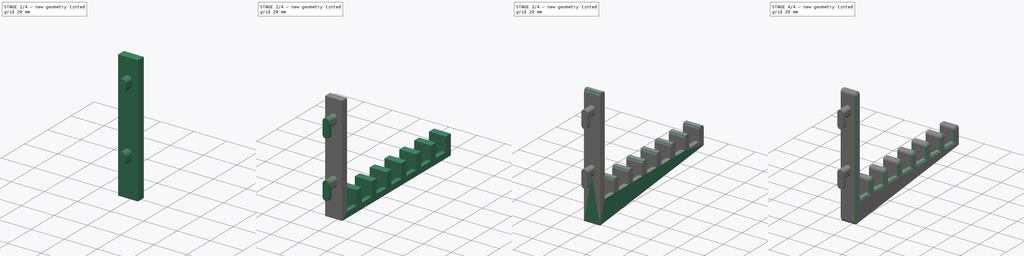
[diagram: build sequence overview — one tinted view per stage of 4, left to right]
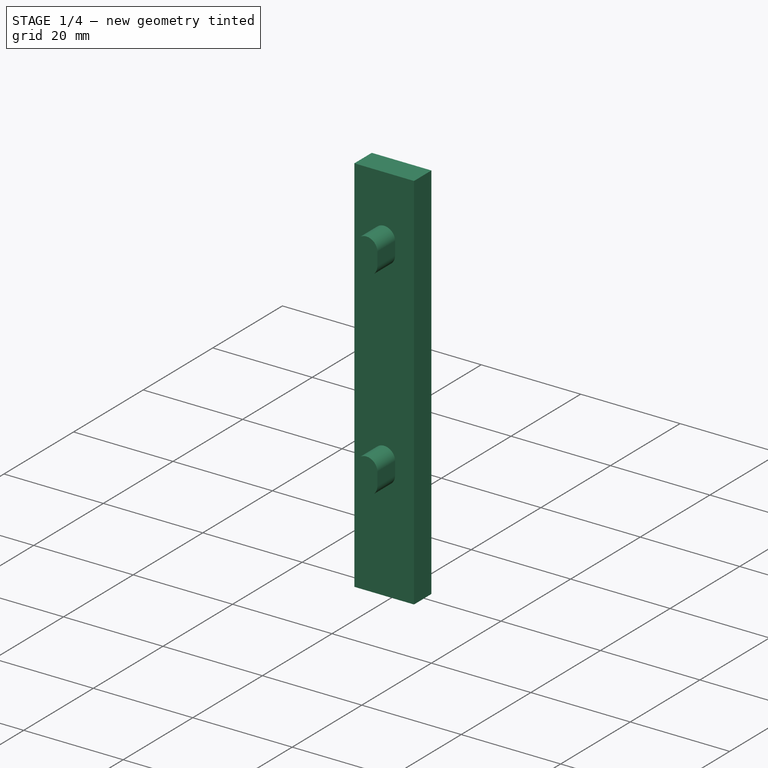
[diagram: stage 1 of 4 — iso view after this stage's code; geometry added in this stage tinted green]
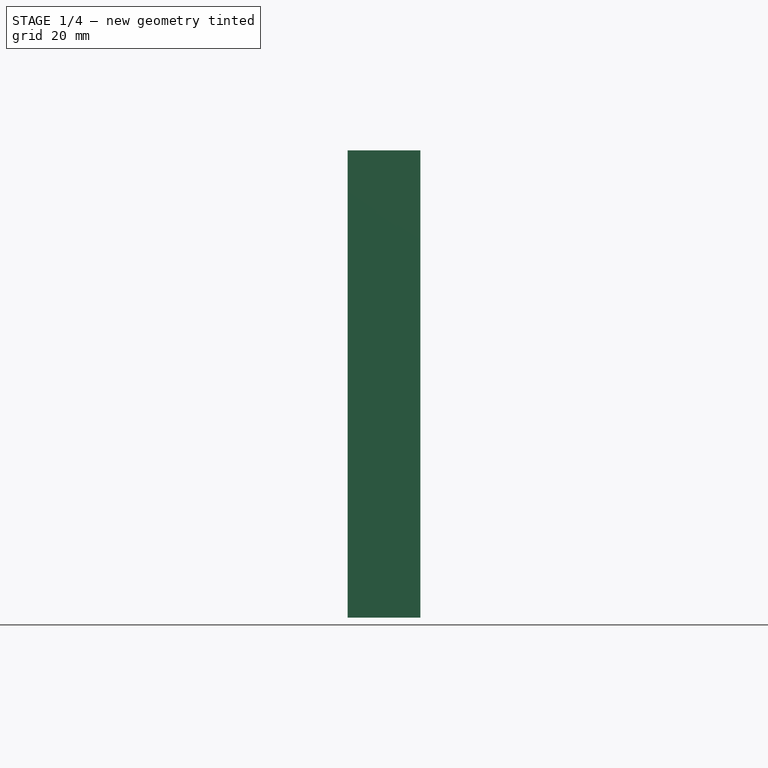
[diagram: stage 1 of 4 — front view after this stage's code; geometry added in this stage tinted green]
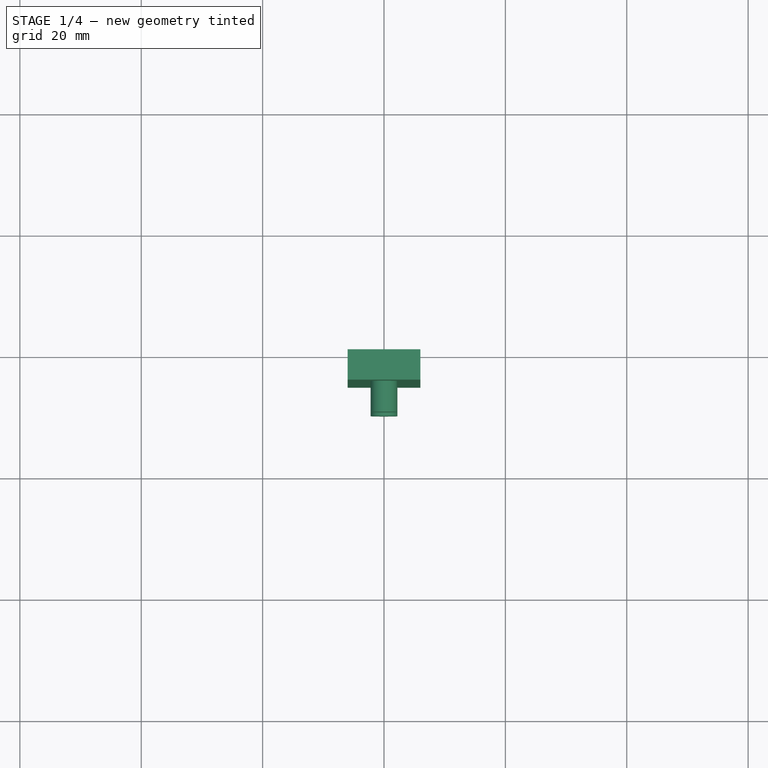
[diagram: stage 1 of 4 — top view after this stage's code; geometry added in this stage tinted green]
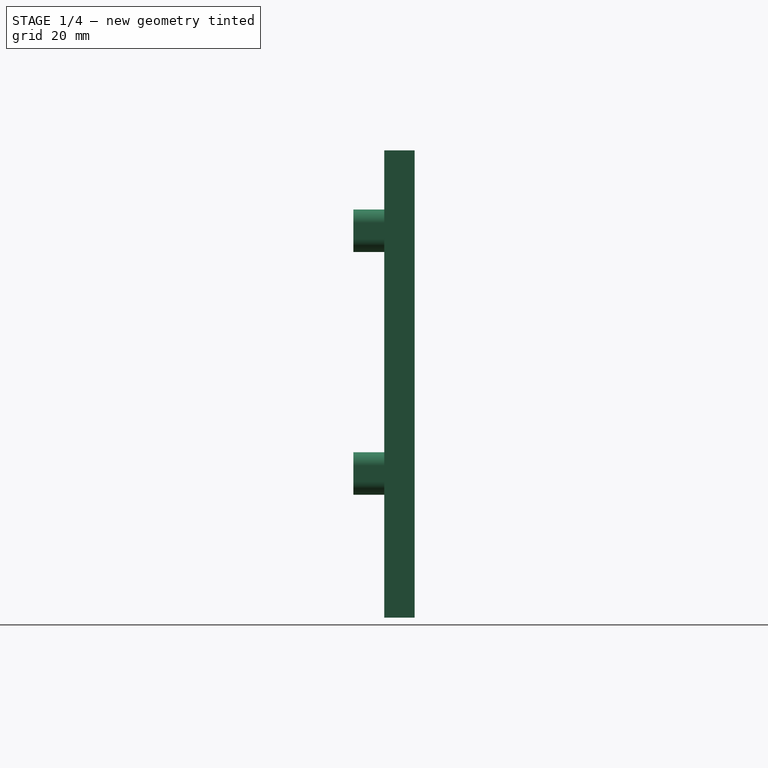
[diagram: stage 1 of 4 — right view after this stage's code; geometry added in this stage tinted green]
FCSTD DOCUMENT  (FreeCAD 1.0R39285 (Git))
Label: 02_Divider_v2
License: All rights reserved
LicenseURL: https://en.wikipedia.org/wiki/All_rights_reserved
objects: Sketcher::SketchObject×7, PartDesign::Pad×5, PartDesign::Pocket×2, PartDesign::Fillet×2, PartDesign::Chamfer×1, PartDesign::Body×1, Spreadsheet::Sheet×1
note: 45 computed .brp shape members not serialized (recipe doc carries the construction recipe); baked Part::Feature solids carry a one-line shape summary decoded from their .brp

FEATURE [Sketcher::SketchObject] Sketch
  ArcFitTolerance = 1e-06
  AttachmentSupport = -> [XZ_Plane]
  FullyConstrained = true
  MakeInternals = false
  MapMode = 5
  Placement = pos=(0,0,0) rot=(1,0,0;1.5708rad)
  sketch-geometry (4):
    g0: LineSegment StartX=-6 StartY=77 StartZ=0 EndX=-6 EndY=0 EndZ=0
    g1: LineSegment StartX=-6 StartY=0 StartZ=0 EndX=6 EndY=0 EndZ=0
    g2: LineSegment StartX=6 StartY=0 StartZ=0 EndX=6 EndY=77 EndZ=0
    g3: LineSegment StartX=6 StartY=77 StartZ=0 EndX=-6 EndY=77 EndZ=0
  constraints (12):
    c: Coincident(g0,g1)
    c: Coincident(g1,g2)
    c: Coincident(g2,g3)
    c: Coincident(g3,g0)
    c: Vertical(g0)
    c: Vertical(g2)
    c: Horizontal(g1)
    c: Horizontal(g3)
    c: Distance(g0,g2) = 12
    c: Distance(g1,g3) = 77
    c: DistanceY(g-1,g0) = 0
    c: DistanceX(g0,g-1) = 6
FEATURE [PartDesign::Pad] Pad
  Direction = (0,-1,2e-16)
  Length = 5
  Length2 = 10
  Placement = pos=(0,0,0) rot=(1,0,0;1.5708rad)
  Profile = -> Sketch
  ReferenceAxis = -> Sketch [N_Axis]
  Refine = true
  Suppressed = false
  Type = 0
FEATURE [Sketcher::SketchObject] Sketch001
  ArcFitTolerance = 1e-06
  AttachmentSupport = -> [Pad]
  FullyConstrained = true
  MakeInternals = false
  MapMode = 5
  Placement = pos=(0,-5,0) rot=(1,0,0;1.5708rad)
  sketch-geometry (12):
    g0: LineSegment StartX=-2.2 StartY=25.05 StartZ=0 EndX=-2.2 EndY=22.45 EndZ=0
    g1: LineSegment StartX=2.2 StartY=25.05 StartZ=0 EndX=2.2 EndY=22.45 EndZ=0
    g2: GeomPoint [constr] X=1e-16 Y=25.05 Z=0
    g3: GeomPoint [constr] X=0 Y=22.45 Z=0
    g4: ArcOfCircle CenterX=1e-16 CenterY=25.05 CenterZ=0 NormalX=0 NormalY=0 NormalZ=1 AngleXU=0 Radius=2.2 StartAngle=0 EndAngle=3.14159
    g5: ArcOfCircle CenterX=0 CenterY=22.45 CenterZ=0 NormalX=0 NormalY=0 NormalZ=1 AngleXU=0 Radius=2.2 StartAngle=3.14159 EndAngle=6.28319
    g6: LineSegment StartX=-2.2 StartY=65.05 StartZ=0 EndX=-2.2 EndY=62.45 EndZ=0
    g7: LineSegment StartX=2.2 StartY=65.05 StartZ=0 EndX=2.2 EndY=62.45 EndZ=0
    g8: GeomPoint [constr] X=-2e-16 Y=65.05 Z=0
    g9: GeomPoint [constr] X=1e-16 Y=62.45 Z=0
    g10: ArcOfCircle CenterX=-2e-16 CenterY=65.05 CenterZ=0 NormalX=0 NormalY=0 NormalZ=1 AngleXU=0 Radius=2.2 StartAngle=0 EndAngle=3.14159
    g11: ArcOfCircle CenterX=1e-16 CenterY=62.45 CenterZ=0 NormalX=0 NormalY=0 NormalZ=1 AngleXU=0 Radius=2.2 StartAngle=3.14159 EndAngle=6.28319
  constraints (32):
    c: Distance(g0) = 2.6
    c: Vertical(g0)
    c: Distance(g1) = 2.6
    c: Vertical(g1)
    c: Horizontal(g0,g2)
    c: Horizontal(g2,g1)
    c: Horizontal(g0,g3)
    c: DistanceX(g0,g2) = 2.2
    c: DistanceX(g3,g-1) = 0
    c: Coincident(g4,g2)
    c: Coincident(g4,g0)
    c: Coincident(g4,g1)
    c: Coincident(g5,g3)
    c: Coincident(g5,g0)
    c: Coincident(g5,g1)
    c: DistanceY(g-1,g3) = 22.45
    c: Distance(g6) = 2.6
    c: Vertical(g6)
    c: Distance(g7) = 2.6
    c: Vertical(g7)
    c: Horizontal(g6,g8)
    c: Horizontal(g8,g7)
    c: Horizontal(g6,g9)
    c: DistanceX(g8,g7) = 2.2
    c: DistanceX(g2,g9) = 0
    c: Coincident(g11,g6)
    c: Coincident(g7,g11)
    c: Coincident(g9,g11)
    c: Coincident(g10,g6)
    c: Coincident(g10,g8)
    c: Coincident(g10,g7)
    c: DistanceY(g6) = 62.45
FEATURE [PartDesign::Pad] Pad001
  BaseFeature = -> Pad
  Direction = (0,-1,2e-16)
  Length = 5.1
  Length2 = 10
  Placement = pos=(0,0,0) rot=(1,0,0;1.5708rad)
  Profile = -> Sketch001
  ReferenceAxis = -> Sketch001 [N_Axis]
  Refine = true
  Suppressed = false
  Type = 0
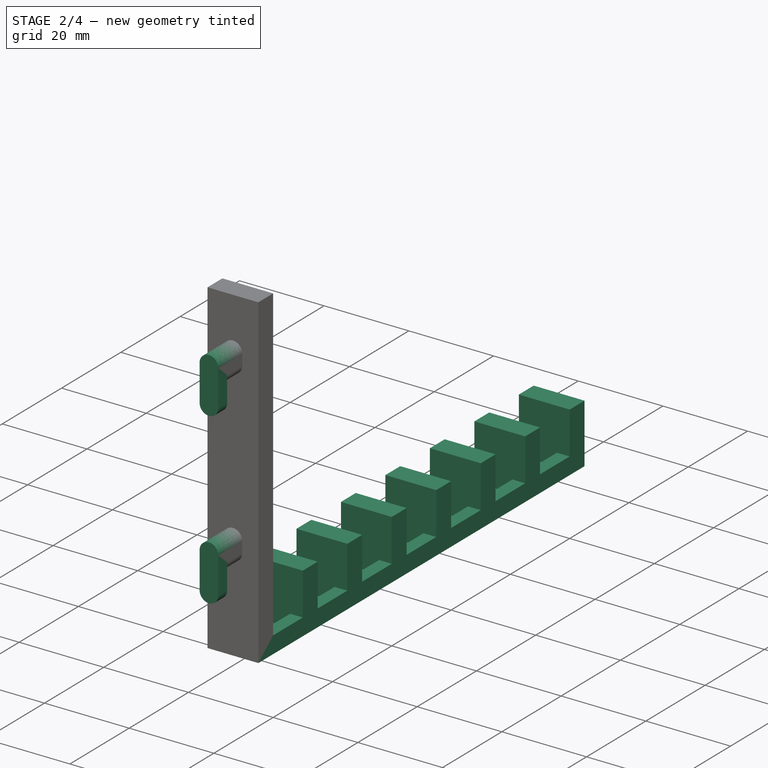
[diagram: stage 2 of 4 — iso view after this stage's code; geometry added in this stage tinted green]
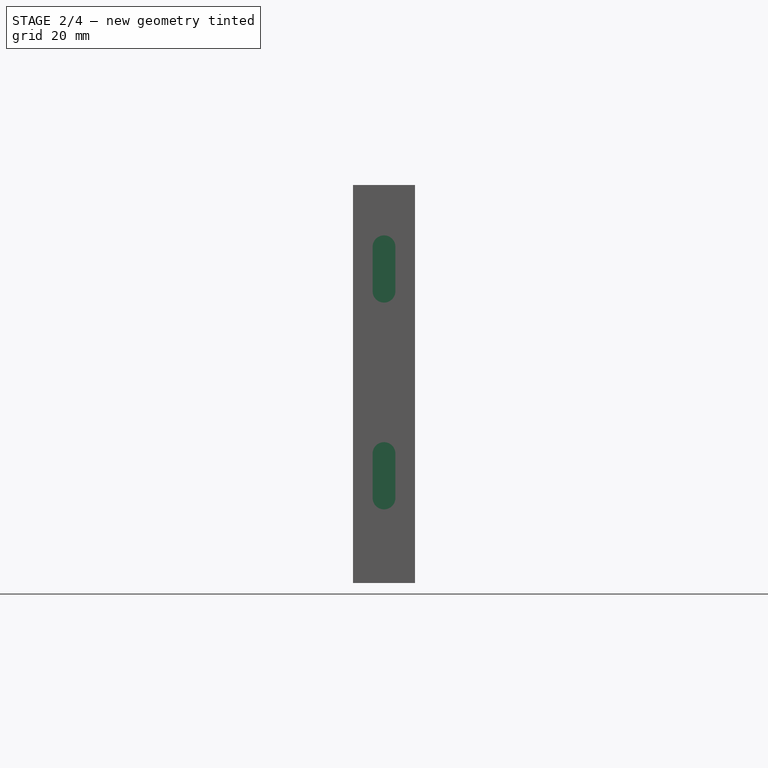
[diagram: stage 2 of 4 — front view after this stage's code; geometry added in this stage tinted green]
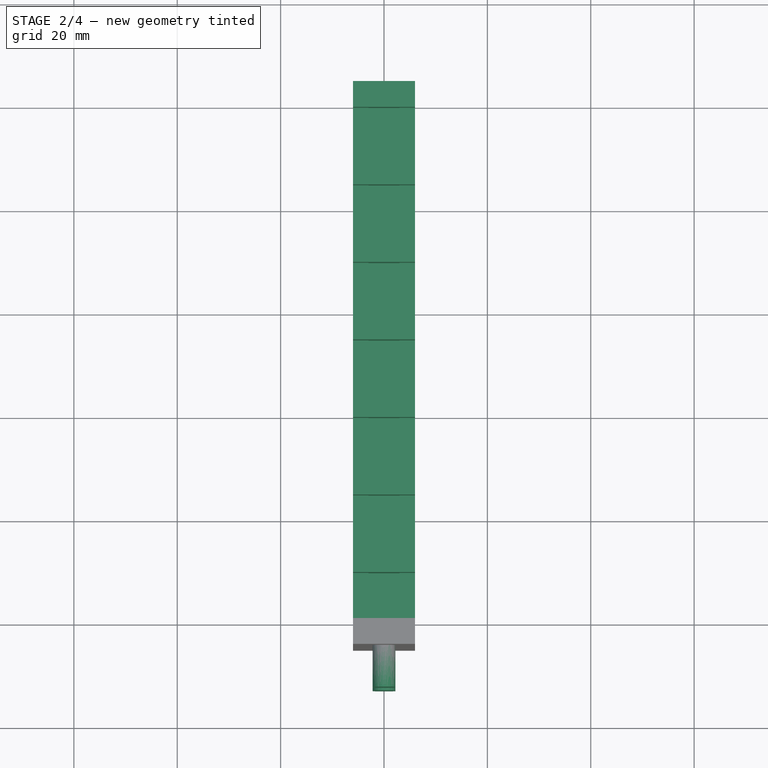
[diagram: stage 2 of 4 — top view after this stage's code; geometry added in this stage tinted green]
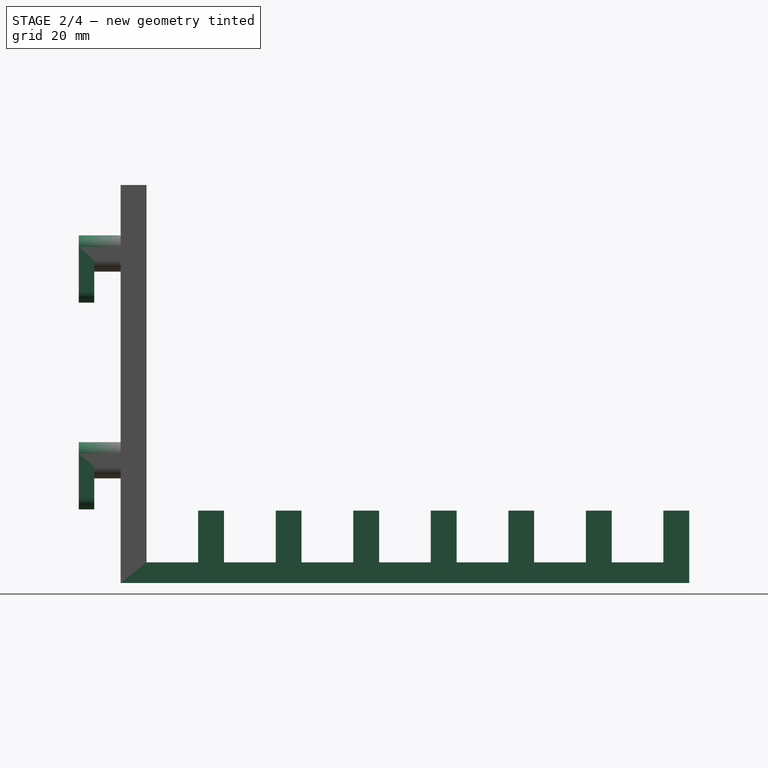
[diagram: stage 2 of 4 — right view after this stage's code; geometry added in this stage tinted green]
FEATURE [Sketcher::SketchObject] Sketch002
  ArcFitTolerance = 1e-06
  AttachmentSupport = -> [Pad001]
  FullyConstrained = true
  MakeInternals = false
  MapMode = 5
  Placement = pos=(0,-10.1,2.2e-15) rot=(1,0,0;1.5708rad)
  sketch-geometry (12):
    g0: LineSegment StartX=-2.2 StartY=25.05 StartZ=0 EndX=-2.2 EndY=16.45 EndZ=0
    g1: LineSegment StartX=2.2 StartY=25.05 StartZ=0 EndX=2.2 EndY=16.45 EndZ=0
    g2: GeomPoint [constr] X=2e-16 Y=25.05 Z=0
    g3: GeomPoint [constr] X=0 Y=16.45 Z=0
    g4: ArcOfCircle CenterX=2e-16 CenterY=25.05 CenterZ=0 NormalX=0 NormalY=0 NormalZ=1 AngleXU=0 Radius=2.2 StartAngle=0 EndAngle=3.14159
    g5: ArcOfCircle CenterX=0 CenterY=16.45 CenterZ=0 NormalX=0 NormalY=0 NormalZ=1 AngleXU=0 Radius=2.2 StartAngle=3.14159 EndAngle=6.28319
    g6: LineSegment StartX=-2.2 StartY=65.05 StartZ=0 EndX=-2.2 EndY=56.45 EndZ=0
    g7: LineSegment StartX=2.2 StartY=65.05 StartZ=0 EndX=2.2 EndY=56.45 EndZ=0
    g8: GeomPoint [constr] X=4.62e-14 Y=65.05 Z=0
    g9: GeomPoint [constr] X=0 Y=56.45 Z=0
    g10: ArcOfCircle CenterX=4.62e-14 CenterY=65.05 CenterZ=0 NormalX=0 NormalY=0 NormalZ=1 AngleXU=0 Radius=2.2 StartAngle=-1.8e-15 EndAngle=3.14159
    g11: ArcOfCircle CenterX=0 CenterY=56.45 CenterZ=0 NormalX=0 NormalY=0 NormalZ=1 AngleXU=0 Radius=2.2 StartAngle=3.14159 EndAngle=6.28319
  constraints (32):
    c: Distance(g0) = 8.6
    c: Vertical(g0)
    c: Distance(g1) = 8.6
    c: Vertical(g1)
    c: DistanceX(g0,g1) = 4.4
    c: Horizontal(g0,g1)
    c: Horizontal(g2,g0)
    c: Horizontal(g3,g0)
    c: DistanceY(g-1,g3) = 16.45
    c: DistanceX(g3,g-1) = 0
    c: Coincident(g5,g3)
    c: Coincident(g5,g1)
    c: Coincident(g5,g0)
    c: Coincident(g4,g0)
    c: Coincident(g1,g4)
    c: Coincident(g4,g2)
    c: Distance(g6) = 8.6
    c: Vertical(g6)
    c: Distance(g7) = 8.6
    c: Vertical(g7)
    c: DistanceX(g6,g7) = 4.4
    c: Horizontal(g6,g7)
    c: Horizontal(g8,g6)
    c: Horizontal(g9,g6)
    c: DistanceX(g9,g-1) = 0
    c: DistanceY(g2,g8) = 40
    c: Coincident(g10,g6)
    c: Coincident(g7,g10)
    c: Coincident(g10,g8)
    c: Coincident(g11,g6)
    c: Coincident(g7,g11)
    c: Coincident(g11,g9)
FEATURE [PartDesign::Pad] Pad002
  BaseFeature = -> Pad001
  Direction = (0,-1,2e-16)
  Length = 3
  Length2 = 10
  Placement = pos=(0,0,0) rot=(1,0,0;1.5708rad)
  Profile = -> Sketch002
  ReferenceAxis = -> Sketch002 [N_Axis]
  Refine = true
  Suppressed = false
  Type = 0
FEATURE [Sketcher::SketchObject] Sketch003
  ArcFitTolerance = 1e-06
  AttachmentSupport = -> [Pad002]
  FullyConstrained = true
  MakeInternals = false
  MapMode = 5
  Placement = pos=(6,0,0) rot=(0.707107,0,0.707107;3.14159rad)
  sketch-geometry (32):
    g0: LineSegment StartX=0 StartY=0 StartZ=0 EndX=0 EndY=-105 EndZ=0
    g1: LineSegment StartX=0 StartY=-105 StartZ=0 EndX=4 EndY=-105 EndZ=0
    g2: LineSegment StartX=4 StartY=-105 StartZ=0 EndX=4 EndY=0 EndZ=0
    g3: LineSegment StartX=4 StartY=0 StartZ=0 EndX=0 EndY=0 EndZ=0
    g4: LineSegment StartX=14 StartY=-10 StartZ=0 EndX=4 EndY=-10 EndZ=0
    g5: LineSegment StartX=4 StartY=-10 StartZ=0 EndX=4 EndY=-15 EndZ=0
    g6: LineSegment StartX=4 StartY=-15 StartZ=0 EndX=14 EndY=-15 EndZ=0
    g7: LineSegment StartX=14 StartY=-15 StartZ=0 EndX=14 EndY=-10 EndZ=0
    g8: LineSegment StartX=14 StartY=-25 StartZ=0 EndX=4 EndY=-25 EndZ=0
    g9: LineSegment StartX=4 StartY=-25 StartZ=0 EndX=4 EndY=-30 EndZ=0
    g10: LineSegment StartX=4 StartY=-30 StartZ=0 EndX=14 EndY=-30 EndZ=0
    g11: LineSegment StartX=14 StartY=-30 StartZ=0 EndX=14 EndY=-25 EndZ=0
    g12: LineSegment StartX=14 StartY=-40 StartZ=0 EndX=4 EndY=-40 EndZ=0
    g13: LineSegment StartX=4 StartY=-40 StartZ=0 EndX=4 EndY=-45 EndZ=0
    g14: LineSegment StartX=4 StartY=-45 StartZ=0 EndX=14 EndY=-45 EndZ=0
    g15: LineSegment StartX=14 StartY=-45 StartZ=0 EndX=14 EndY=-40 EndZ=0
    g16: LineSegment StartX=14 StartY=-55 StartZ=0 EndX=4 EndY=-55 EndZ=0
    g17: LineSegment StartX=4 StartY=-55 StartZ=0 EndX=4 EndY=-60 EndZ=0
    g18: LineSegment StartX=4 StartY=-60 StartZ=0 EndX=14 EndY=-60 EndZ=0
    g19: LineSegment StartX=14 StartY=-60 StartZ=0 EndX=14 EndY=-55 EndZ=0
    g20: LineSegment StartX=14 StartY=-70 StartZ=0 EndX=4 EndY=-70 EndZ=0
    g21: LineSegment StartX=4 StartY=-70 StartZ=0 EndX=4 EndY=-75 EndZ=0
    g22: LineSegment StartX=4 StartY=-75 StartZ=0 EndX=14 EndY=-75 EndZ=0
    g23: LineSegment StartX=14 StartY=-75 StartZ=0 EndX=14 EndY=-70 EndZ=0
    g24: LineSegment StartX=14 StartY=-85 StartZ=0 EndX=4 EndY=-85 EndZ=0
    g25: LineSegment StartX=4 StartY=-85 StartZ=0 EndX=4 EndY=-90 EndZ=0
    g26: LineSegment StartX=4 StartY=-90 StartZ=0 EndX=14 EndY=-90 EndZ=0
    g27: LineSegment StartX=14 StartY=-90 StartZ=0 EndX=14 EndY=-85 EndZ=0
    g28: LineSegment StartX=14 StartY=-100 StartZ=0 EndX=4 EndY=-100 EndZ=0
    g29: LineSegment StartX=4 StartY=-100 StartZ=0 EndX=4 EndY=-105 EndZ=0
    g30: LineSegment StartX=4 StartY=-105 StartZ=0 EndX=14 EndY=-105 EndZ=0
    g31: LineSegment StartX=14 StartY=-105 StartZ=0 EndX=14 EndY=-100 EndZ=0
  constraints (96):
    c: Coincident(g0,g1)
    c: Coincident(g1,g2)
    c: Coincident(g2,g3)
    c: Coincident(g3,g0)
    c: Vertical(g0)
    c: Vertical(g2)
    c: Horizontal(g1)
    c: Horizontal(g3)
    c: Distance(g0,g2) = 4
    c: Distance(g1,g3) = 105
    c: DistanceY(g0,g-1) = 0
    c: DistanceX(g-1,g0) = 0
    c: Coincident(g4,g5)
    c: Coincident(g5,g6)
    c: Coincident(g6,g7)
    c: Coincident(g7,g4)
    c: Horizontal(g4)
    c: Horizontal(g6)
    c: Vertical(g5)
    c: Vertical(g7)
    c: Distance(g5,g7) = 10
    c: Distance(g4,g6) = 5
    c: Coincident(g8,g9)
    c: Coincident(g9,g10)
    c: Coincident(g10,g11)
    c: Coincident(g11,g8)
    c: Horizontal(g8)
    c: Horizontal(g10)
    c: Vertical(g9)
    c: Vertical(g11)
    c: Distance(g9,g11) = 10
    c: Distance(g8,g10) = 5
    c: Coincident(g12,g13)
    c: Coincident(g13,g14)
    c: Coincident(g14,g15)
    c: Coincident(g15,g12)
    c: Horizontal(g12)
    c: Horizontal(g14)
    c: Vertical(g13)
    c: Vertical(g15)
    c: Distance(g13,g15) = 10
    c: Distance(g12,g14) = 5
    c: Coincident(g16,g17)
    c: Coincident(g17,g18)
    c: Coincident(g18,g19)
    c: Coincident(g19,g16)
    c: Horizontal(g16)
    c: Horizontal(g18)
    c: Vertical(g17)
    c: Vertical(g19)
    c: Distance(g17,g19) = 10
    c: Distance(g16,g18) = 5
    c: Coincident(g20,g21)
    c: Coincident(g21,g22)
    c: Coincident(g22,g23)
    c: Coincident(g23,g20)
    c: Horizontal(g20)
    c: Horizontal(g22)
    c: Vertical(g21)
    c: Vertical(g23)
    c: Distance(g21,g23) = 10
    c: Distance(g20,g22) = 5
    c: Coincident(g24,g25)
    c: Coincident(g25,g26)
    c: Coincident(g26,g27)
    c: Coincident(g27,g24)
    c: Horizontal(g24)
    c: Horizontal(g26)
    c: Vertical(g25)
    c: Vertical(g27)
    c: Distance(g25,g27) = 10
    c: Distance(g24,g26) = 5
    c: Coincident(g28,g29)
    c: Coincident(g29,g30)
    c: Coincident(g30,g31)
    c: Coincident(g31,g28)
    c: Horizontal(g28)
    c: Horizontal(g30)
    c: Vertical(g29)
    c: Vertical(g31)
    c: Distance(g29,g31) = 10
    c: Distance(g28,g30) = 5
    c: DistanceY(g8,g5) = 10
    c: Vertical(g5,g8)
    c: DistanceY(g12,g9) = 10
    c: DistanceY(g16,g13) = 10
    c: DistanceY(g20,g17) = 10
    c: DistanceY(g24,g21) = 10
    c: DistanceY(g28,g25) = 10
    c: DistanceY(g1,g29) = 0
    c: Vertical(g28,g25)
    c: Vertical(g24,g21)
    c: Vertical(g20,g17)
    c: Vertical(g16,g13)
    c: Vertical(g12,g9)
    c: DistanceX(g1,g29) = 0
FEATURE [PartDesign::Pad] Pad003
  BaseFeature = -> Pad002
  Direction = (1,0,-2e-16)
  Length = 12
  Length2 = 10
  Placement = pos=(0,0,0) rot=(1,0,0;1.5708rad)
  Profile = -> Sketch003
  ReferenceAxis = -> Sketch003 [N_Axis]
  Refine = true
  Reversed = true
  Suppressed = false
  Type = 0
FEATURE [Sketcher::SketchObject] Sketch004
  ArcFitTolerance = 1e-06
  AttachmentSupport = -> [Pad003]
  FullyConstrained = true
  MakeInternals = false
  MapMode = 5
  Placement = pos=(9e-16,9e-16,4) rot=(0,0,1;3.14159rad)
  expr: Constraints[10] = <<Params>>.rail_slot_distance_from_centre
  expr: Constraints[8] = <<Params>>.rail_slot_width
  sketch-geometry (28):
    g0: LineSegment StartX=-3 StartY=0 StartZ=0 EndX=-3 EndY=-10 EndZ=0
    g1: LineSegment StartX=-3 StartY=-10 StartZ=0 EndX=3 EndY=-10 EndZ=0
    g2: LineSegment StartX=3 StartY=-10 StartZ=0 EndX=3 EndY=0 EndZ=0
    g3: LineSegment StartX=3 StartY=0 StartZ=0 EndX=-3 EndY=0 EndZ=0
    g4: LineSegment StartX=-3 StartY=-15 StartZ=0 EndX=-3 EndY=-25 EndZ=0
    g5: LineSegment StartX=-3 StartY=-25 StartZ=0 EndX=3 EndY=-25 EndZ=0
    g6: LineSegment StartX=3 StartY=-25 StartZ=0 EndX=3 EndY=-15 EndZ=0
    g7: LineSegment StartX=3 StartY=-15 StartZ=0 EndX=-3 EndY=-15 EndZ=0
    g8: LineSegment StartX=-3 StartY=-30 StartZ=0 EndX=-3 EndY=-40 EndZ=0
    g9: LineSegment StartX=-3 StartY=-40 StartZ=0 EndX=3 EndY=-40 EndZ=0
    g10: LineSegment StartX=3 StartY=-40 StartZ=0 EndX=3 EndY=-30 EndZ=0
    g11: LineSegment StartX=3 StartY=-30 StartZ=0 EndX=-3 EndY=-30 EndZ=0
    g12: LineSegment StartX=-3 StartY=-45 StartZ=0 EndX=-3 EndY=-55 EndZ=0
    g13: LineSegment StartX=-3 StartY=-55 StartZ=0 EndX=3 EndY=-55 EndZ=0
    g14: LineSegment StartX=3 StartY=-55 StartZ=0 EndX=3 EndY=-45 EndZ=0
    g15: LineSegment StartX=3 StartY=-45 StartZ=0 EndX=-3 EndY=-45 EndZ=0
    g16: LineSegment StartX=-3 StartY=-60 StartZ=0 EndX=-3 EndY=-70 EndZ=0
    g17: LineSegment StartX=-3 StartY=-70 StartZ=0 EndX=3 EndY=-70 EndZ=0
    g18: LineSegment StartX=3 StartY=-70 StartZ=0 EndX=3 EndY=-60 EndZ=0
    g19: LineSegment StartX=3 StartY=-60 StartZ=0 EndX=-3 EndY=-60 EndZ=0
    g20: LineSegment StartX=-3 StartY=-75 StartZ=0 EndX=-3 EndY=-85 EndZ=0
    g21: LineSegment StartX=-3 StartY=-85 StartZ=0 EndX=3 EndY=-85 EndZ=0
    g22: LineSegment StartX=3 StartY=-85 StartZ=0 EndX=3 EndY=-75 EndZ=0
    g23: LineSegment StartX=3 StartY=-75 StartZ=0 EndX=-3 EndY=-75 EndZ=0
    g24: LineSegment StartX=-3 StartY=-90 StartZ=0 EndX=-3 EndY=-100 EndZ=0
    g25: LineSegment StartX=-3 StartY=-100 StartZ=0 EndX=3 EndY=-100 EndZ=0
    g26: LineSegment StartX=3 StartY=-100 StartZ=0 EndX=3 EndY=-90 EndZ=0
    g27: LineSegment StartX=3 StartY=-90 StartZ=0 EndX=-3 EndY=-90 EndZ=0
  constraints (84):
    c: Coincident(g0,g1)
    c: Coincident(g1,g2)
    c: Coincident(g2,g3)
    c: Coincident(g3,g0)
    c: Vertical(g0)
    c: Vertical(g2)
    c: Horizontal(g1)
    c: Horizontal(g3)
    c: Distance(g0,g2) = 6
    c: Distance(g1,g3) = 10
    c: DistanceX(g0,g-1) = 3
    c: DistanceY(g0,g-1) = 0
    c: Coincident(g4,g5)
    c: Coincident(g5,g6)
    c: Coincident(g6,g7)
    c: Coincident(g7,g4)
    c: Vertical(g4)
    c: Vertical(g6)
    c: Horizontal(g5)
    c: Horizontal(g7)
    c: Coincident(g8,g9)
    c: Coincident(g9,g10)
    c: Coincident(g10,g11)
    c: Coincident(g11,g8)
    c: Vertical(g8)
    c: Vertical(g10)
    c: Horizontal(g9)
    c: Horizontal(g11)
    c: Coincident(g12,g13)
    c: Coincident(g13,g14)
    c: Coincident(g14,g15)
    c: Coincident(g15,g12)
    c: Vertical(g12)
    c: Vertical(g14)
    c: Horizontal(g13)
    c: Horizontal(g15)
    c: Coincident(g16,g17)
    c: Coincident(g17,g18)
    c: Coincident(g18,g19)
    c: Coincident(g19,g16)
    c: Vertical(g16)
    c: Vertical(g18)
    c: Horizontal(g17)
    c: Horizontal(g19)
    c: Coincident(g20,g21)
    c: Coincident(g21,g22)
    c: Coincident(g22,g23)
    c: Coincident(g23,g20)
    c: Vertical(g20)
    c: Vertical(g22)
    c: Horizontal(g21)
    c: Horizontal(g23)
    c: Coincident(g24,g25)
    c: Coincident(g25,g26)
    c: Coincident(g26,g27)
    c: Coincident(g27,g24)
    c: Vertical(g24)
    c: Vertical(g26)
    c: Horizontal(g25)
    c: Horizontal(g27)
    c: DistanceY(g4,g0) = 5
    c: DistanceX(g4,g0) = 0
    c: DistanceX(g4,g8) = 0
    c: DistanceY(g8,g4) = 5
    c: DistanceY(g12,g8) = 5
    c: DistanceX(g8,g12) = 0
    c: DistanceY(g16,g12) = 5
    c: DistanceX(g16,g12) = 0
    c: DistanceY(g20,g16) = 5
    c: DistanceX(g16,g20) = 0
    c: DistanceY(g24,g20) = 5
    c: DistanceX(g20,g24) = 0
    c: Equal(g0,g4)
    c: Equal(g4,g8)
    c: Equal(g8,g12)
    c: Equal(g12,g16)
    c: Equal(g16,g20)
    c: Equal(g20,g24)
    c: Equal(g3,g7)
    c: Equal(g7,g11)
    c: Equal(g11,g15)
    c: Equal(g15,g19)
    c: Equal(g19,g23)
    c: Equal(g23,g27)
FEATURE [PartDesign::Pocket] Pocket
  BaseFeature = -> Pad003
  Direction = (0,0,-1)
  Length = 3
  Length2 = 5
  Placement = pos=(0,0,0) rot=(1,0,0;1.5708rad)
  Profile = -> Sketch004
  ReferenceAxis = -> Sketch004 [N_Axis]
  Refine = true
  Suppressed = false
  Type = 0
  expr: Length = <<Params>>.rail_slot_depth
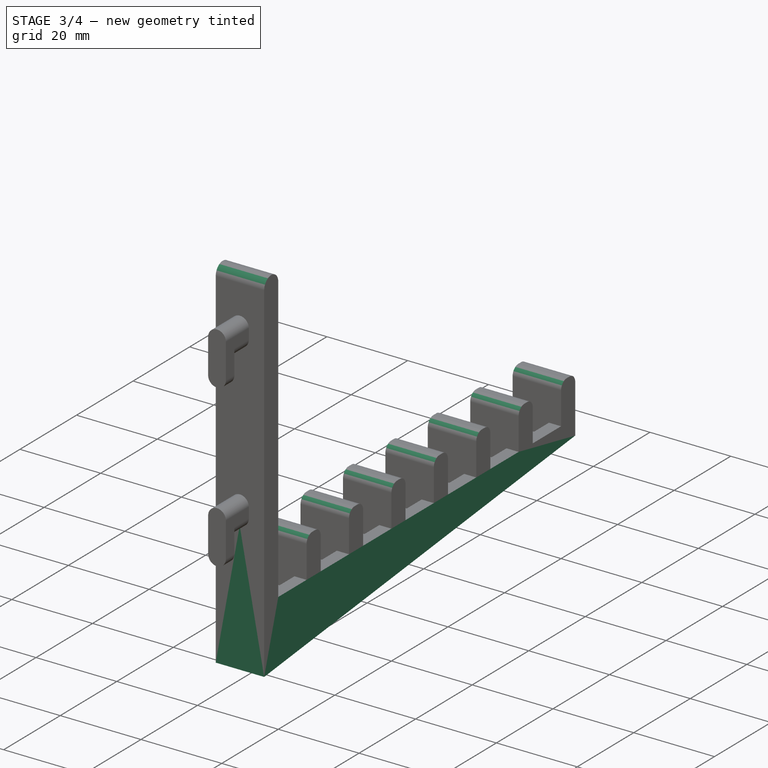
[diagram: stage 3 of 4 — iso view after this stage's code; geometry added in this stage tinted green]
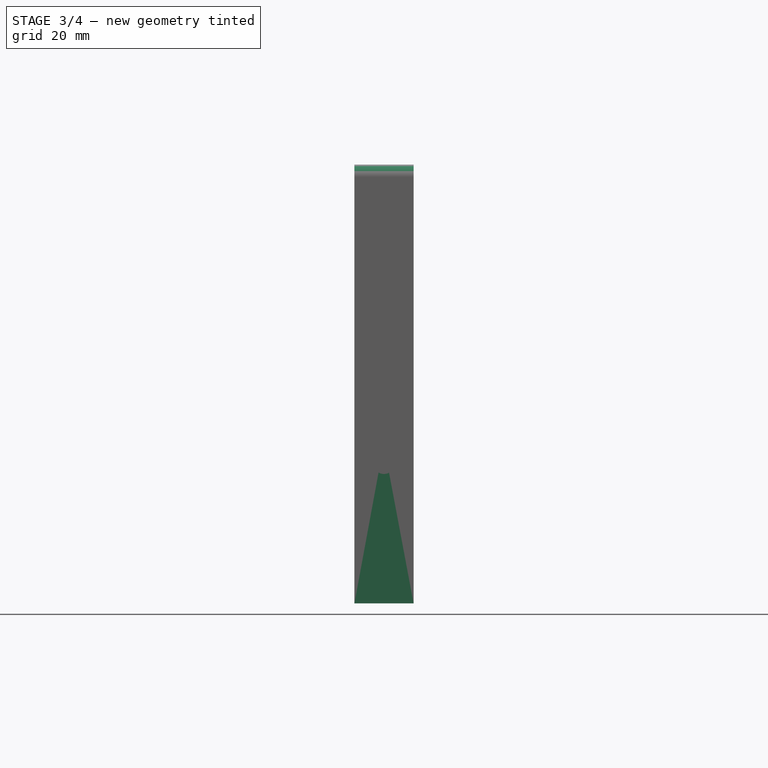
[diagram: stage 3 of 4 — front view after this stage's code; geometry added in this stage tinted green]
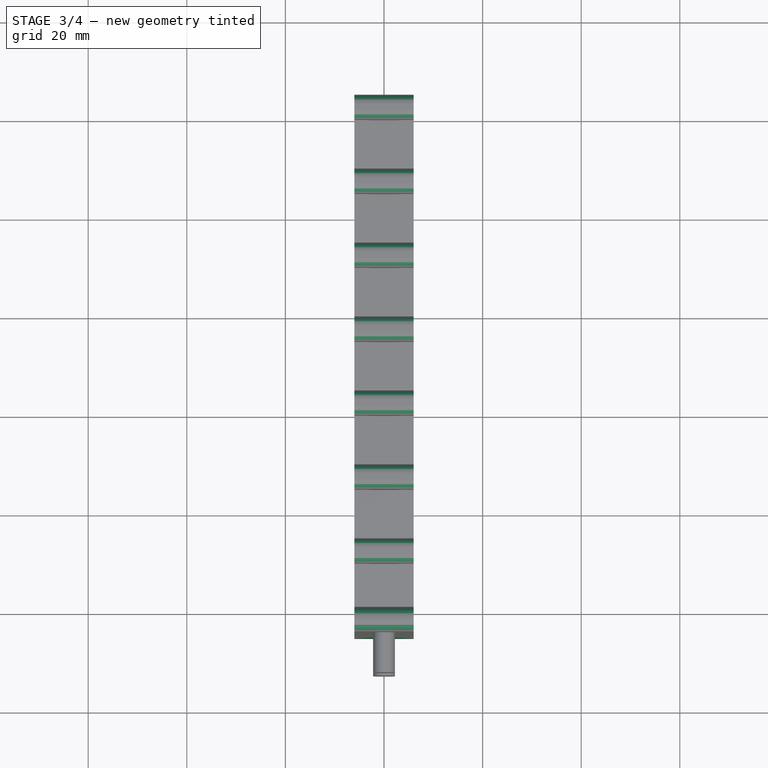
[diagram: stage 3 of 4 — top view after this stage's code; geometry added in this stage tinted green]
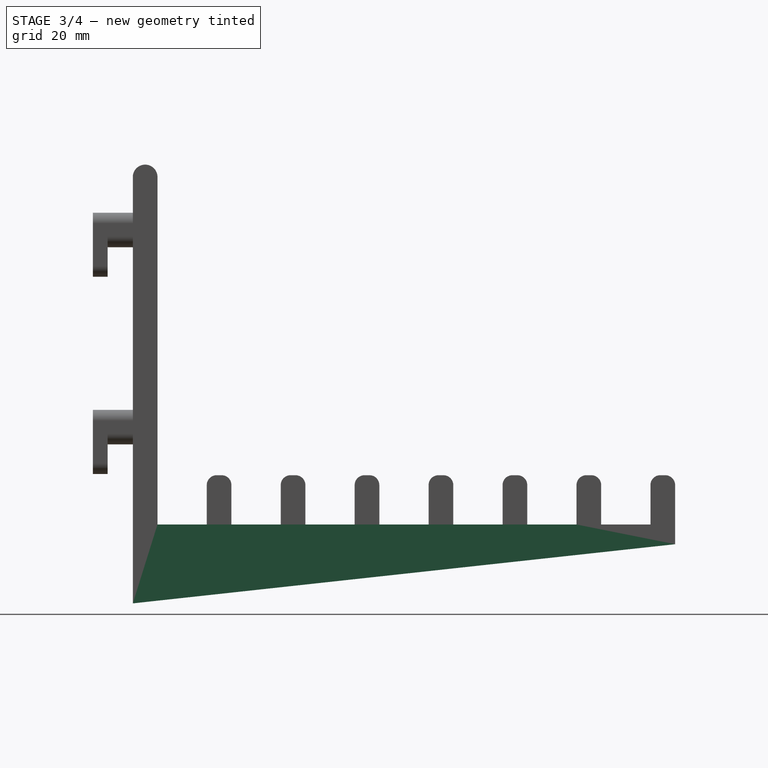
[diagram: stage 3 of 4 — right view after this stage's code; geometry added in this stage tinted green]
FEATURE [Sketcher::SketchObject] Sketch005
  ArcFitTolerance = 1e-06
  AttachmentSupport = -> [Pocket]
  FullyConstrained = true
  MakeInternals = false
  MapMode = 5
  Placement = pos=(6,0,0) rot=(0.707107,0,0.707107;3.14159rad)
  sketch-geometry (5):
    g0: GeomPoint [constr] X=74.5 Y=2.5 Z=0
    g1: ArcOfCircle CenterX=74.5 CenterY=2.5 CenterZ=0 NormalX=0 NormalY=0 NormalZ=1 AngleXU=0 Radius=2.5 StartAngle=4.71239 EndAngle=7.85398
    g2: LineSegment StartX=74.5 StartY=5 StartZ=0 EndX=77.1 EndY=5 EndZ=0
    g3: LineSegment StartX=74.5 StartY=1.501e-13 StartZ=0 EndX=77.1 EndY=1.501e-13 EndZ=0
    g4: LineSegment StartX=77.1 StartY=5 StartZ=0 EndX=77.1 EndY=1.501e-13 EndZ=0
  constraints (13):
    c: DistanceY(g-1,g0) = 2.5
    c: DistanceX(g-1,g0) = 74.5
    c: Radius(g1) = 2.5
    c: Angle(g1) = 3.14159
    c: Coincident(g1,g0)
    c: Tangent(g2,g1) = 1.5708
    c: Horizontal(g2)
    c: Coincident(g3,g1)
    c: Horizontal(g3)
    c: Coincident(g4,g2)
    c: Coincident(g3,g4)
    c: DistanceX(g2,g2) = 2.6
    c: DistanceX(g3,g3) = 2.6
FEATURE [PartDesign::Pocket] Pocket001
  BaseFeature = -> Pocket
  Direction = (-1,0,2e-16)
  Length = 5
  Length2 = 5
  Placement = pos=(0,0,0) rot=(1,0,0;1.5708rad)
  Profile = -> Sketch005
  ReferenceAxis = -> Sketch005 [N_Axis]
  Refine = true
  Suppressed = false
  Type = 1
FEATURE [PartDesign::Fillet] Fillet
  Base = -> Pocket001 [Edge3,Edge39,Edge91,Edge92,Edge104,Edge105,Edge117,Edge118,Edge130,Edge131,Edge143,Edge144,Edge156,Edge157]
  BaseFeature = -> Pocket001
  Placement = pos=(0,0,0) rot=(1,0,0;1.5708rad)
  Radius = 2
  Refine = true
  SupportTransform = false
  Suppressed = false
  UseAllEdges = false
FEATURE [Sketcher::SketchObject] Sketch006
  ArcFitTolerance = 1e-06
  AttachmentSupport = -> [Fillet]
  FullyConstrained = true
  MakeInternals = false
  MapMode = 5
  Placement = pos=(6,0,0) rot=(0.707107,0,0.707107;3.14159rad)
  sketch-geometry (3):
    g0: LineSegment StartX=-12 StartY=5 StartZ=0 EndX=0 EndY=5 EndZ=0
    g1: LineSegment StartX=0 StartY=5 StartZ=0 EndX=0 EndY=-105 EndZ=0
    g2: LineSegment StartX=-12 StartY=5 StartZ=0 EndX=0 EndY=-105 EndZ=0
  constraints (9):
    c: Distance(g0) = 12
    c: Horizontal(g0)
    c: Distance(g1) = 110
    c: Vertical(g1)
    c: Coincident(g1,g0)
    c: DistanceY(g-1,g0) = 5
    c: DistanceX(g0,g-1) = 0
    c: Coincident(g2,g0)
    c: Coincident(g2,g1)
FEATURE [PartDesign::Pad] Pad004
  BaseFeature = -> Fillet
  Direction = (1,0,-2e-16)
  Length = 12
  Length2 = 10
  Placement = pos=(0,0,0) rot=(1,0,0;1.5708rad)
  Profile = -> Sketch006
  ReferenceAxis = -> Sketch006 [N_Axis]
  Refine = true
  Reversed = true
  Suppressed = false
  Type = 0
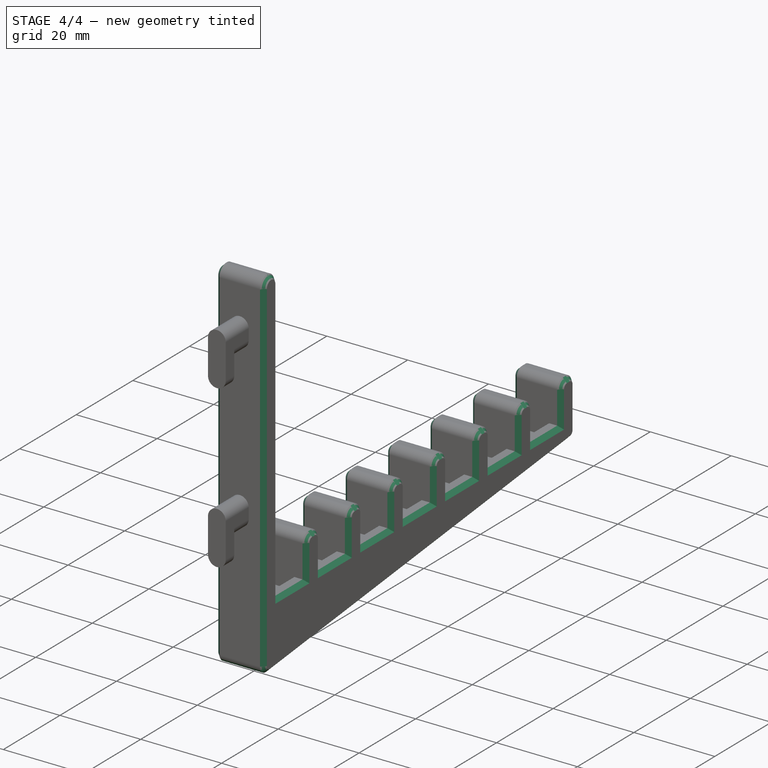
[diagram: stage 4 of 4 — iso view after this stage's code; geometry added in this stage tinted green]
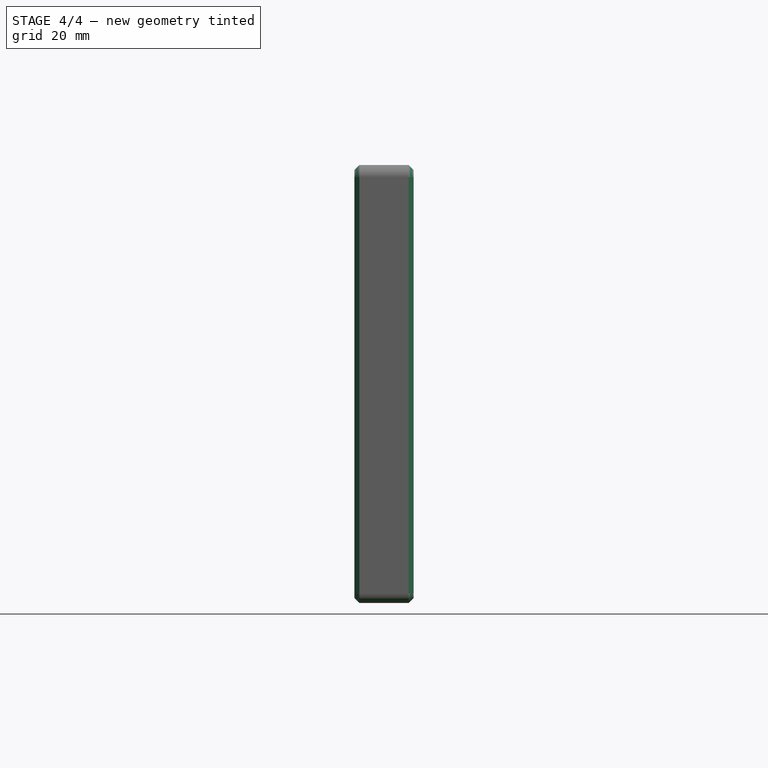
[diagram: stage 4 of 4 — front view after this stage's code; geometry added in this stage tinted green]
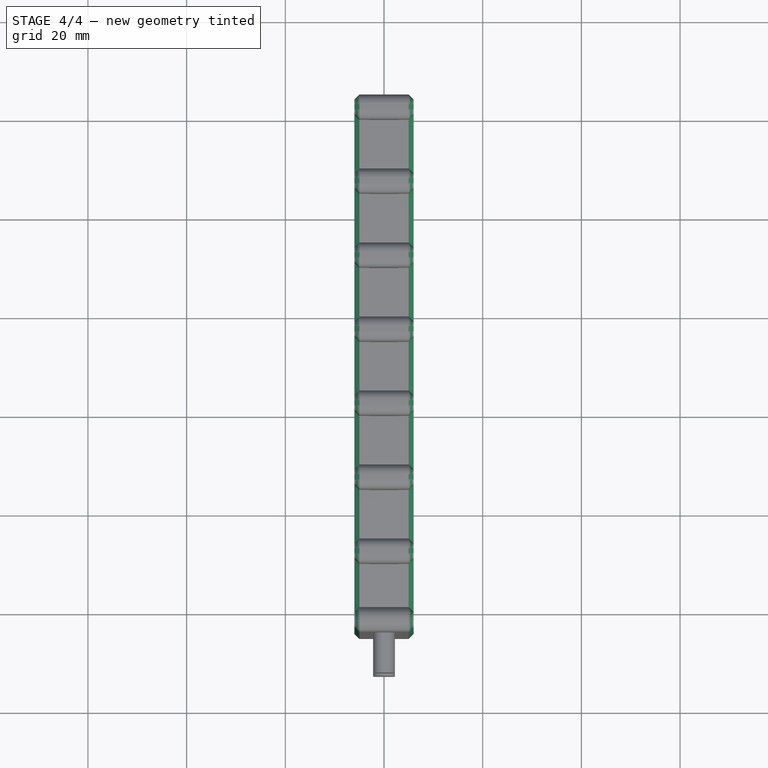
[diagram: stage 4 of 4 — top view after this stage's code; geometry added in this stage tinted green]
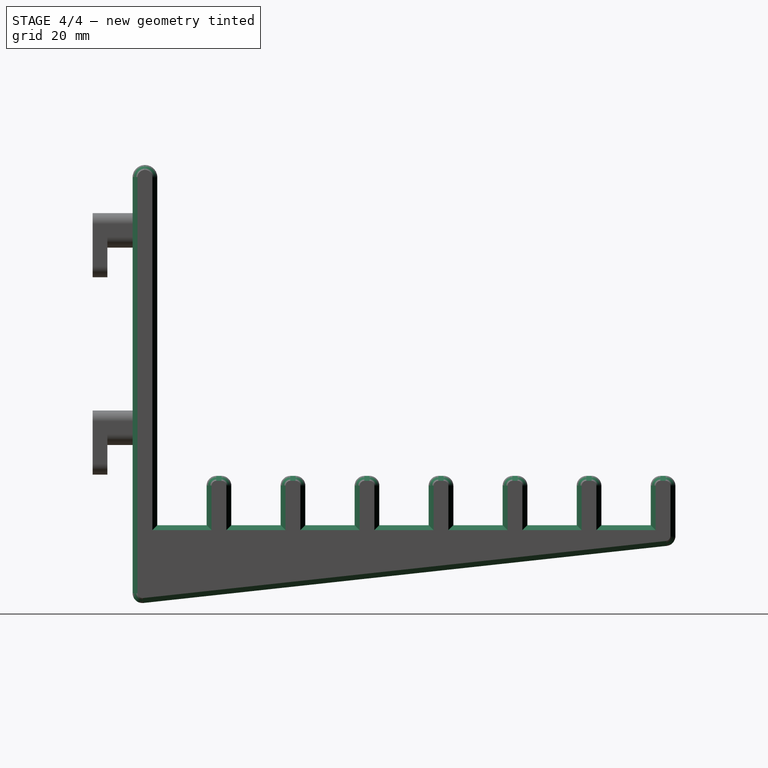
[diagram: stage 4 of 4 — right view after this stage's code; geometry added in this stage tinted green]
FEATURE [PartDesign::Fillet] Fillet001
  Base = -> Pad004 [Edge94,Edge99]
  BaseFeature = -> Pad004
  Placement = pos=(0,0,0) rot=(1,0,0;1.5708rad)
  Radius = 2
  Refine = true
  SupportTransform = false
  Suppressed = false
  UseAllEdges = false
FEATURE [PartDesign::Chamfer] Chamfer
  Angle = 45
  Base = -> Fillet001 [Face5,Face2]
  BaseFeature = -> Fillet001
  ChamferType = 0
  FlipDirection = false
  Placement = pos=(0,0,0) rot=(1,0,0;1.5708rad)
  Refine = true
  Size = 1
  Size2 = 1
  SupportTransform = false
  Suppressed = false
  UseAllEdges = false
FEATURE [PartDesign::Body] Body
  AllowCompound = false
  Group = -> [Sketch,Pad,Sketch001,Pad001,Sketch002,Pad002,Sketch003,Pad003,Sketch004,Pocket,Sketch005,Pocket001,Fillet,Sketch006,Pad004,Fillet001,Chamfer]
  Origin = -> Origin
  Tip = -> Chamfer
FEATURE [Spreadsheet::Sheet] Spreadsheet  label="Params"
  cells = A1='rail_slot_width; B1(rail_slot_width)=6; A2='rail_slot_distance_from_centre; B2(rail_slot_distance_from_centre)==rail_slot_width / 2; A3='rail_slot_depth; B3(rail_slot_depth)=3
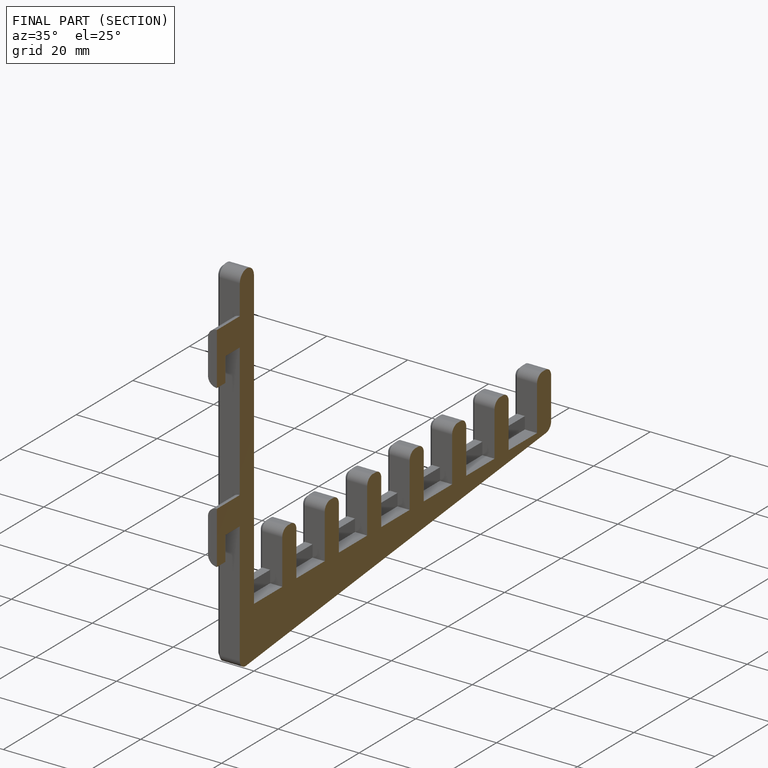
[diagram: finished part — half-section view (interior)]
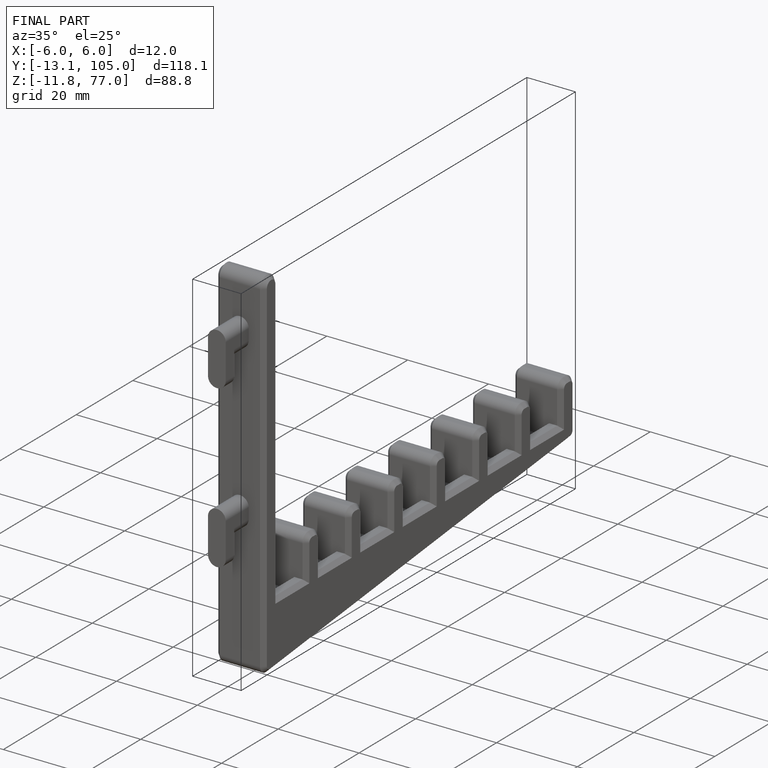
[diagram: finished part — iso view with bounding-box wireframe]
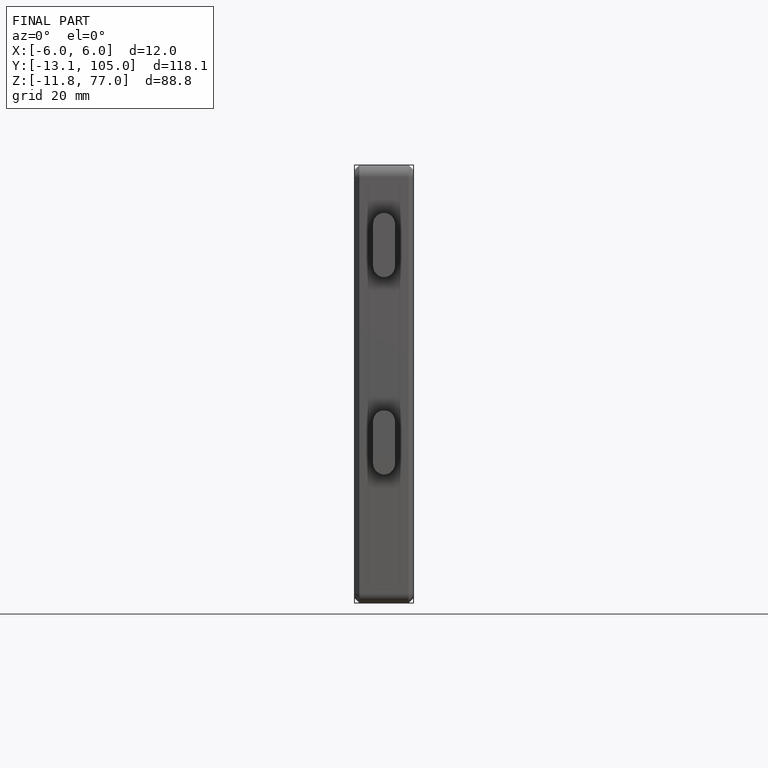
[diagram: finished part — front view with bounding-box wireframe]
